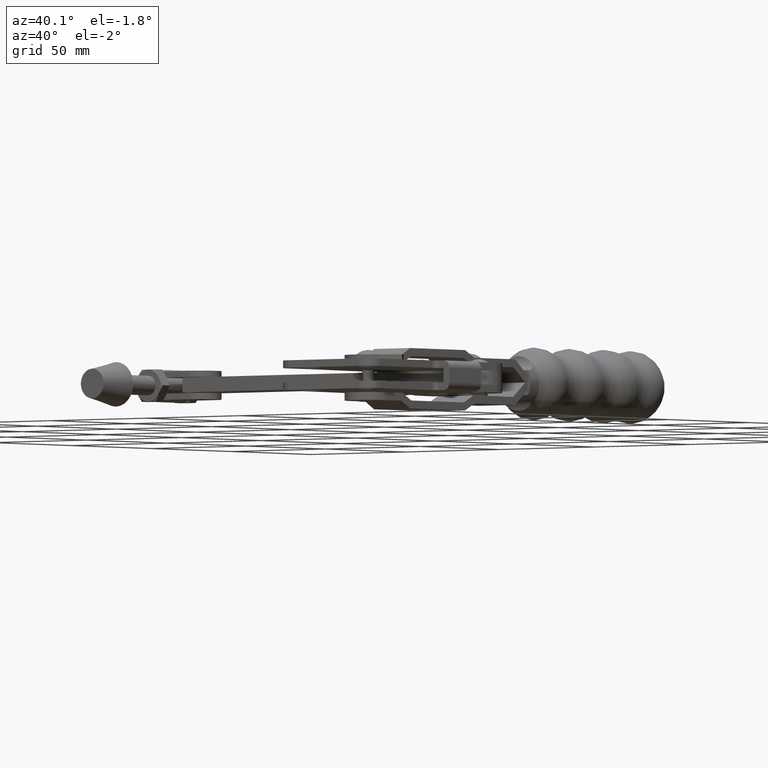
[diagram: clean part render]
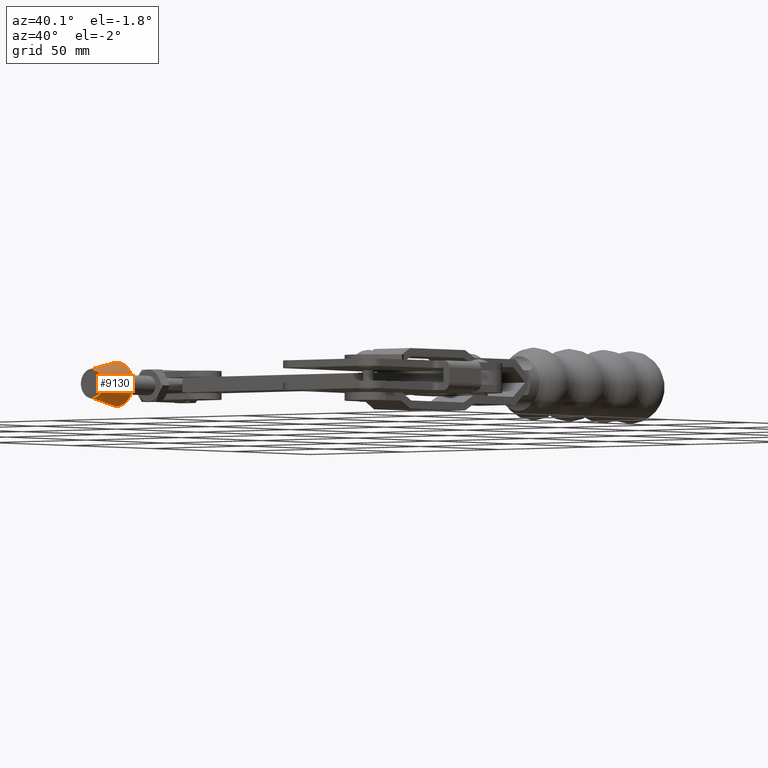
[diagram: same view with one face highlighted and labeled with its STEP entity id]
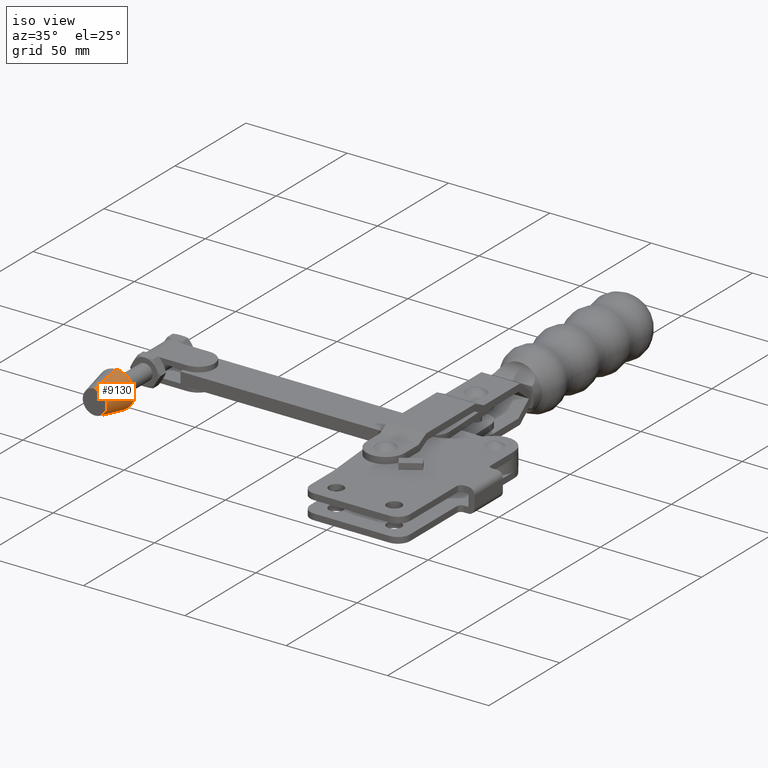
[diagram: same view with one face highlighted and labeled with its STEP entity id]
A machine part, auxiliary view. The second image highlights one B-rep face of the part: STEP entity #9130.
A second angle (iso view) of the same face is appended — the face is thin or edge-on in the first view.
In plain terms, the highlighted conical surface has half-angle 11.31 deg.
Its self-contained STEP definition (entity closure, byte-faithful):
#250 = AXIS2_PLACEMENT_3D ( 'NONE', #782, #3518, #9554 ) ;
#282 = FACE_OUTER_BOUND ( 'NONE', #6476, .T. ) ;
#296 = ORIENTED_EDGE ( 'NONE', *, *, #2633, .T. ) ;
#782 = CARTESIAN_POINT ( 'NONE',  ( -173.2739711762832800, 12.65702236415015800, -5.204170427930421300E-015 ) ) ;
#790 = EDGE_CURVE ( 'NONE', #7304, #5215, #2658, .T. ) ;
#912 = VECTOR ( 'NONE', #7222, 1000.000000000000000 ) ;
#989 = DIRECTION ( 'NONE',  ( 0.0000000000000000000, 0.0000000000000000000, 1.000000000000000000 ) ) ;
#1101 = DIRECTION ( 'NONE',  ( 0.0000000000000000000, 1.000000000000000000, 0.0000000000000000000 ) ) ;
#1123 = CARTESIAN_POINT ( 'NONE',  ( -173.2739711762832800, 12.65702236415015800, -5.204170427930421300E-015 ) ) ;
#1154 = LINE ( 'NONE', #3857, #912 ) ;
#1270 = CARTESIAN_POINT ( 'NONE',  ( -173.2739711762832800, 27.65702236415015800, -5.204170427930421300E-015 ) ) ;
#1458 = DIRECTION ( 'NONE',  ( -0.0000000000000000000, -1.000000000000000000, -0.0000000000000000000 ) ) ;
#1719 = EDGE_CURVE ( 'NONE', #8232, #3016, #4830, .T. ) ;
#1730 = ORIENTED_EDGE ( 'NONE', *, *, #1719, .F. ) ;
#2064 = ORIENTED_EDGE ( 'NONE', *, *, #3712, .F. ) ;
#2136 = AXIS2_PLACEMENT_3D ( 'NONE', #1270, #1458, #8284 ) ;
#2633 = EDGE_CURVE ( 'NONE', #8232, #7304, #8026, .T. ) ;
#2658 = CIRCLE ( 'NONE', #2136, 9.000000000000000000 ) ;
#3016 = VERTEX_POINT ( 'NONE', #10048 ) ;
#3518 = DIRECTION ( 'NONE',  ( -0.0000000000000000000, -1.000000000000000000, -0.0000000000000000000 ) ) ;
#3629 = ORIENTED_EDGE ( 'NONE', *, *, #790, .T. ) ;
#3712 = EDGE_CURVE ( 'NONE', #3016, #5215, #1154, .T. ) ;
#3857 = CARTESIAN_POINT ( 'NONE',  ( -173.2739711762832800, 12.65702236415015800, 5.999999999999994700 ) ) ;
#4595 = AXIS2_PLACEMENT_3D ( 'NONE', #1123, #1101, #989 ) ;
#4830 = CIRCLE ( 'NONE', #250, 6.000000000000000000 ) ;
#5090 = CARTESIAN_POINT ( 'NONE',  ( -173.2739711762832800, 27.65702236415015800, 8.999999999999994700 ) ) ;
#5215 = VERTEX_POINT ( 'NONE', #5090 ) ;
#5571 = CARTESIAN_POINT ( 'NONE',  ( -173.2739711762832800, 27.65702236415015800, -9.000000000000005300 ) ) ;
#5973 = VECTOR ( 'NONE', #10224, 1000.000000000000000 ) ;
#6361 = CARTESIAN_POINT ( 'NONE',  ( -173.2739711762832800, 12.65702236415015800, -6.000000000000005300 ) ) ;
#6476 = EDGE_LOOP ( 'NONE', ( #1730, #296, #3629, #2064 ) ) ;
#7222 = DIRECTION ( 'NONE',  ( 0.0000000000000000000, 0.9805806756909202200, 0.1961161351381839900 ) ) ;
#7304 = VERTEX_POINT ( 'NONE', #5571 ) ;
#8026 = LINE ( 'NONE', #8309, #5973 ) ;
#8232 = VERTEX_POINT ( 'NONE', #6361 ) ;
#8284 = DIRECTION ( 'NONE',  ( 0.0000000000000000000, 0.0000000000000000000, -1.000000000000000000 ) ) ;
#8309 = CARTESIAN_POINT ( 'NONE',  ( -173.2739711762832800, 12.65702236415015800, -6.000000000000005300 ) ) ;
#9130 = ADVANCED_FACE ( 'NONE', ( #282 ), #9325, .T. ) ;
#9325 = CONICAL_SURFACE ( 'NONE', #4595, 6.000000000000000000, 0.1973955598498806600 ) ;
#9554 = DIRECTION ( 'NONE',  ( 0.0000000000000000000, 0.0000000000000000000, -1.000000000000000000 ) ) ;
#10048 = CARTESIAN_POINT ( 'NONE',  ( -173.2739711762832800, 12.65702236415015800, 5.999999999999994700 ) ) ;
#10224 = DIRECTION ( 'NONE',  ( 2.401729971581267900E-017, 0.9805806756909202200, -0.1961161351381839900 ) ) ;